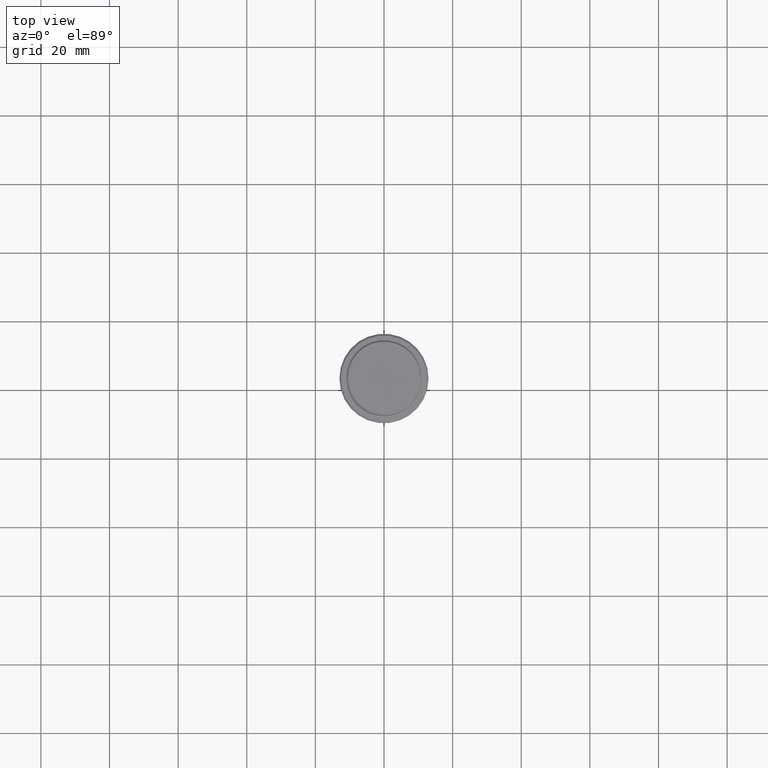
[diagram: clean part render]
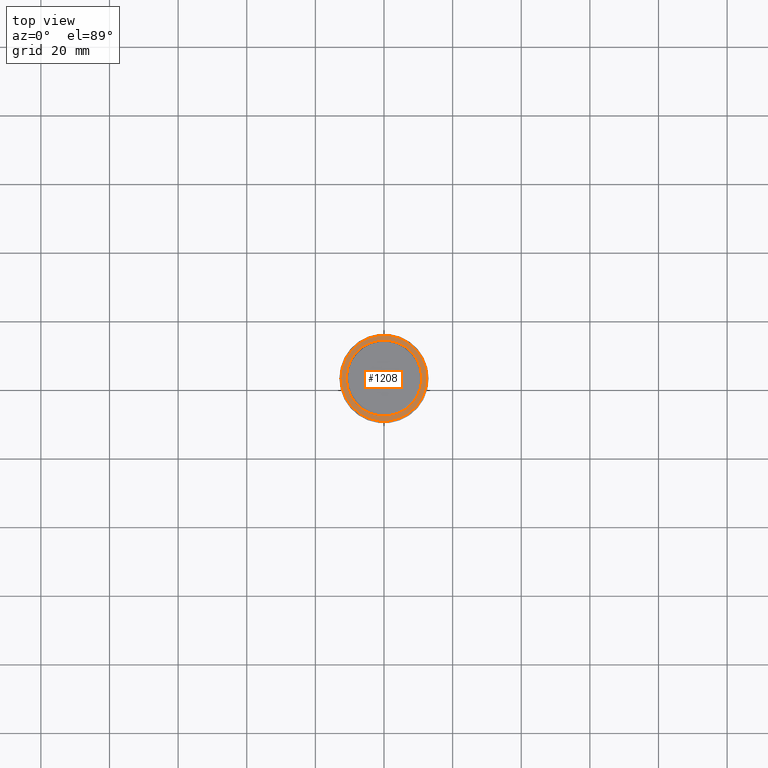
[diagram: same view with one face highlighted and labeled with its STEP entity id]
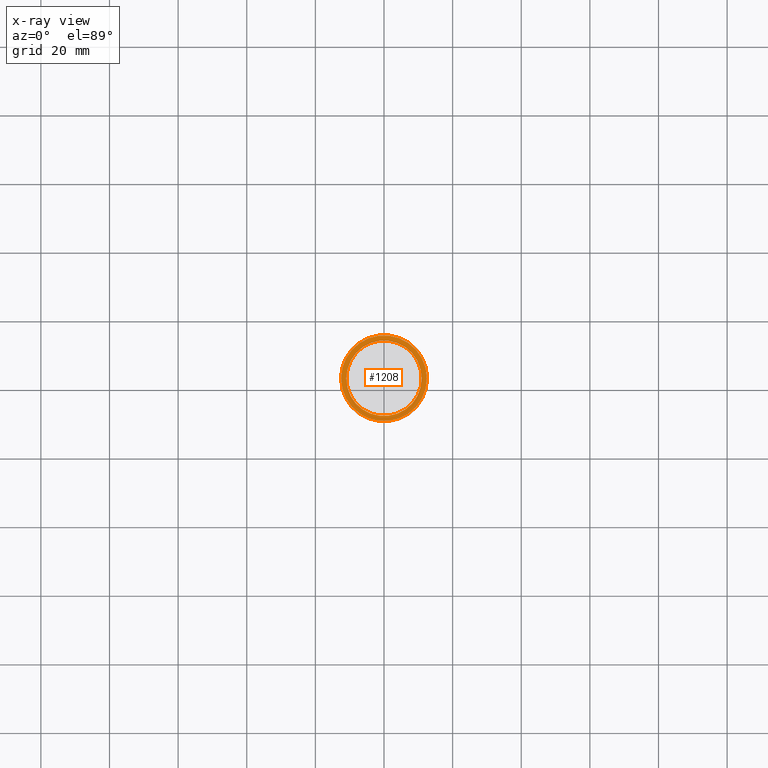
[diagram: x-ray of the same camera — body ghosted, the highlighted face saturated]
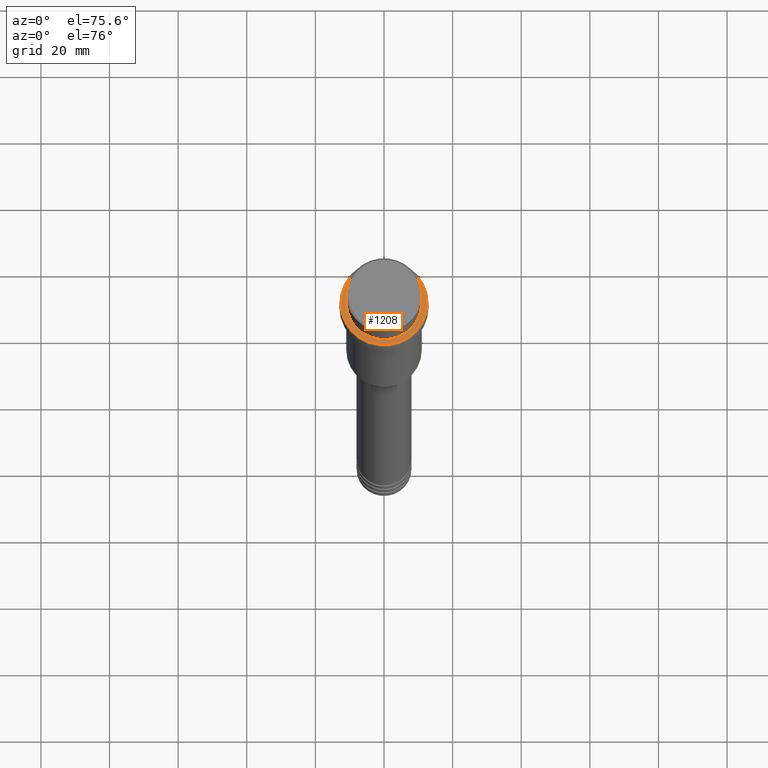
[diagram: same view with one face highlighted and labeled with its STEP entity id]
A machine part, top view. The second image highlights one B-rep face of the part: STEP entity #1208.
The next image is the same camera in x-ray: the body ghosted, the highlighted face saturated — about 0% of this face is hidden behind the body in this view.
A second angle (auxiliary view) of the same face is appended — the face is thin or edge-on in the first view.
In plain terms, the highlighted planar face has unit normal (0, -0, 1).
Its self-contained STEP definition (entity closure, byte-faithful):
#34 = CIRCLE ( 'NONE', #835, 12.50000000000003908 ) ;
#71 = DIRECTION ( 'NONE',  ( 0.000000000000000000, 0.000000000000000000, -1.000000000000000000 ) ) ;
#90 = CARTESIAN_POINT ( 'NONE',  ( 0.000000000000000000, 0.000000000000000000, -10.00000000000000000 ) ) ;
#164 = DIRECTION ( 'NONE',  ( -0.000000000000000000, -0.000000000000000000, 1.000000000000000000 ) ) ;
#196 = AXIS2_PLACEMENT_3D ( 'NONE', #1169, #71, #1188 ) ;
#239 = FACE_OUTER_BOUND ( 'NONE', #708, .T. ) ;
#252 = CARTESIAN_POINT ( 'NONE',  ( 10.99999999999996625, 0.000000000000000000, -10.00000000000000000 ) ) ;
#340 = VERTEX_POINT ( 'NONE', #766 ) ;
#359 = ORIENTED_EDGE ( 'NONE', *, *, #625, .T. ) ;
#365 = DIRECTION ( 'NONE',  ( 1.000000000000000000, 0.000000000000000000, 0.000000000000000000 ) ) ;
#416 = DIRECTION ( 'NONE',  ( 1.000000000000000000, 0.000000000000000000, 0.000000000000000000 ) ) ;
#426 = CARTESIAN_POINT ( 'NONE',  ( -12.50000000000003908, 0.000000000000000000, -10.00000000000000000 ) ) ;
#488 = CARTESIAN_POINT ( 'NONE',  ( 0.000000000000000000, 0.000000000000000000, -10.00000000000000000 ) ) ;
#500 = ORIENTED_EDGE ( 'NONE', *, *, #1159, .T. ) ;
#509 = DIRECTION ( 'NONE',  ( 1.000000000000000000, 0.000000000000000000, 0.000000000000000000 ) ) ;
#625 = EDGE_CURVE ( 'NONE', #1330, #340, #737, .T. ) ;
#672 = AXIS2_PLACEMENT_3D ( 'NONE', #1094, #1310, #767 ) ;
#695 = VERTEX_POINT ( 'NONE', #976 ) ;
#708 = EDGE_LOOP ( 'NONE', ( #1353, #827 ) ) ;
#715 = AXIS2_PLACEMENT_3D ( 'NONE', #1280, #1396, #416 ) ;
#717 = EDGE_LOOP ( 'NONE', ( #359, #500 ) ) ;
#737 = CIRCLE ( 'NONE', #715, 10.99999999999996625 ) ;
#766 = CARTESIAN_POINT ( 'NONE',  ( -10.99999999999996625, 1.347111479062084460E-15, -10.00000000000000000 ) ) ;
#767 = DIRECTION ( 'NONE',  ( 1.000000000000000000, 0.000000000000000000, 0.000000000000000000 ) ) ;
#773 = PLANE ( 'NONE',  #672 ) ;
#827 = ORIENTED_EDGE ( 'NONE', *, *, #1096, .T. ) ;
#835 = AXIS2_PLACEMENT_3D ( 'NONE', #90, #1272, #509 ) ;
#837 = AXIS2_PLACEMENT_3D ( 'NONE', #488, #164, #365 ) ;
#877 = FACE_BOUND ( 'NONE', #717, .T. ) ;
#976 = CARTESIAN_POINT ( 'NONE',  ( 12.50000000000003908, 1.561424668912877675E-15, -10.00000000000000000 ) ) ;
#1047 = VERTEX_POINT ( 'NONE', #426 ) ;
#1094 = CARTESIAN_POINT ( 'NONE',  ( 0.000000000000000000, 10.49999999999996625, -10.00000000000000000 ) ) ;
#1096 = EDGE_CURVE ( 'NONE', #695, #1047, #34, .T. ) ;
#1137 = CIRCLE ( 'NONE', #196, 10.99999999999996625 ) ;
#1159 = EDGE_CURVE ( 'NONE', #340, #1330, #1137, .T. ) ;
#1169 = CARTESIAN_POINT ( 'NONE',  ( 0.000000000000000000, 0.000000000000000000, -10.00000000000000000 ) ) ;
#1188 = DIRECTION ( 'NONE',  ( 1.000000000000000000, 0.000000000000000000, 0.000000000000000000 ) ) ;
#1208 = ADVANCED_FACE ( 'NONE', ( #239, #877 ), #773, .T. ) ;
#1272 = DIRECTION ( 'NONE',  ( -0.000000000000000000, -0.000000000000000000, 1.000000000000000000 ) ) ;
#1280 = CARTESIAN_POINT ( 'NONE',  ( 0.000000000000000000, 0.000000000000000000, -10.00000000000000000 ) ) ;
#1310 = DIRECTION ( 'NONE',  ( 0.000000000000000000, -0.000000000000000000, 1.000000000000000000 ) ) ;
#1318 = CIRCLE ( 'NONE', #837, 12.50000000000003908 ) ;
#1330 = VERTEX_POINT ( 'NONE', #252 ) ;
#1334 = EDGE_CURVE ( 'NONE', #1047, #695, #1318, .T. ) ;
#1353 = ORIENTED_EDGE ( 'NONE', *, *, #1334, .T. ) ;
#1396 = DIRECTION ( 'NONE',  ( 0.000000000000000000, 0.000000000000000000, -1.000000000000000000 ) ) ;